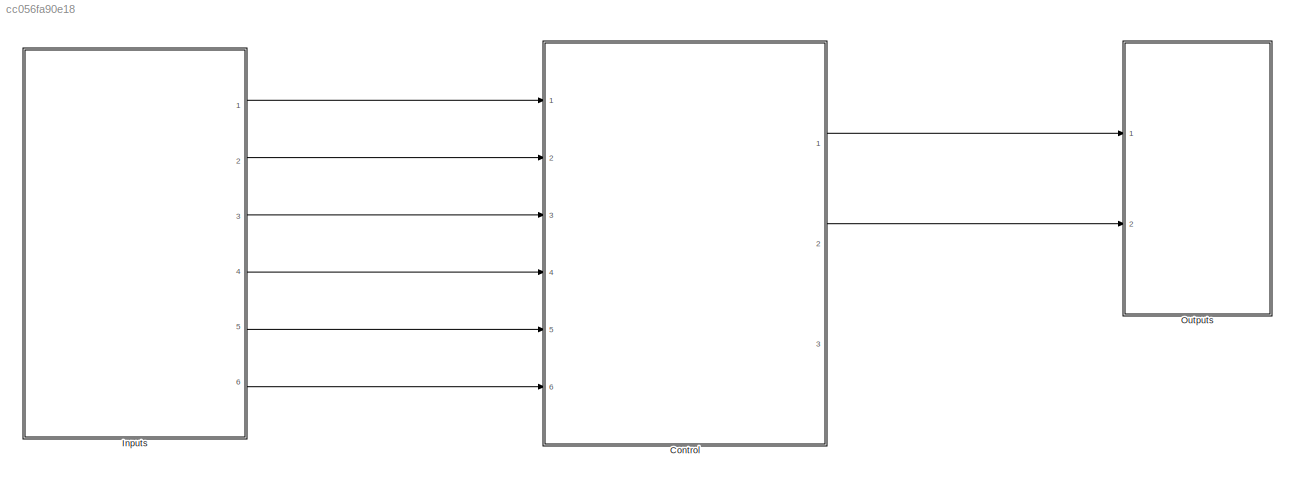
MODEL slx_cc056fa90e18
KIND model
CONFIG AbsTol = auto
CONFIG EnableMultiTasking = off
CONFIG FixedStep = auto
CONFIG MaxStep = auto
CONFIG MinStep = auto
CONFIG RelTol = 1e-3
CONFIG SampleTimeConstraint = Unconstrained
CONFIG Solver = VariableStepAuto
CONFIG SolverName = VariableStepAuto
CONFIG StartTime = 0.0
CONFIG StopTime = 20
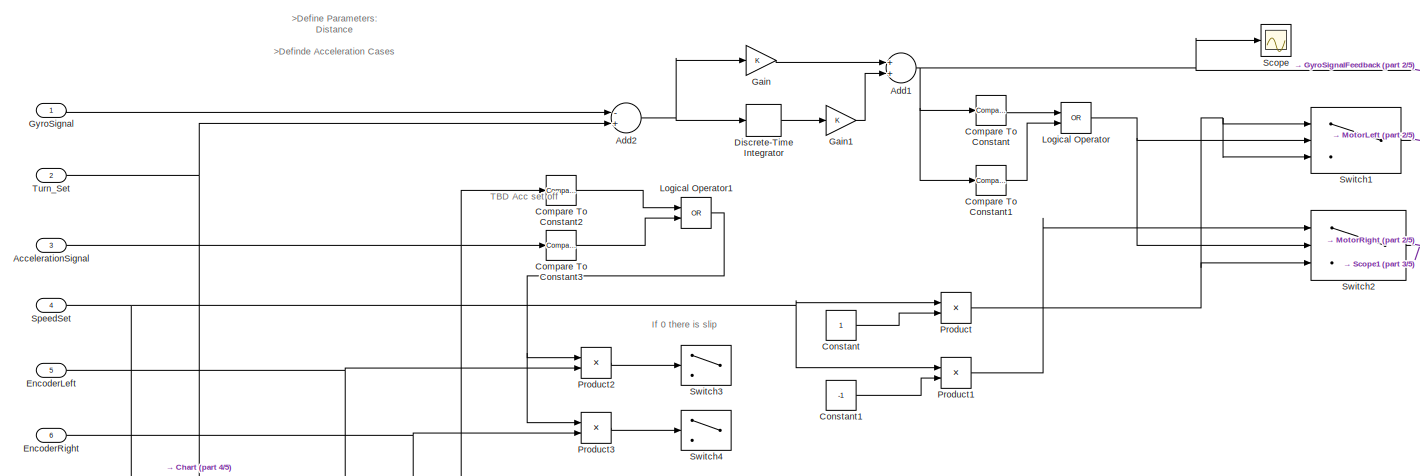
[diagram: Control - part 1/5, full width, top band]
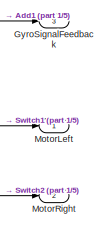
[diagram: Control - part 2/5, top right region]
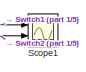
[diagram: Control - part 3/5, middle right region]
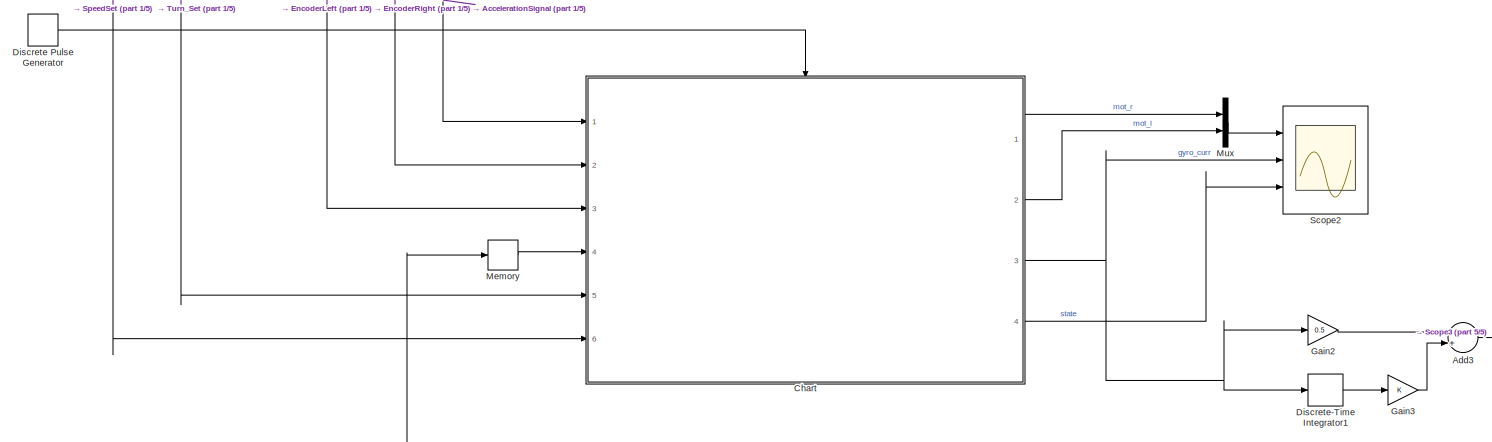
[diagram: Control - part 4/5, full width, bottom band]
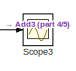
[diagram: Control - part 5/5, bottom right region]
BLOCK [SubSystem] Control
  Ports = [6, 3]
  RequestExecContextInheritance = off
BLOCK [Inport] Control/AccelerationSignal
  IconDisplay = Port number
  Port = 3
BLOCK [Sum] Control/Add1
  InputSameDT = off
  OutDataTypeStr = Inherit: Inherit via internal rule
  Ports = [2, 1]
  SaturateOnIntegerOverflow = off
BLOCK [Sum] Control/Add2
  InputSameDT = off
  Inputs = -+
  OutDataTypeStr = Inherit: Inherit via internal rule
  Ports = [2, 1]
  SaturateOnIntegerOverflow = off
BLOCK [Sum] Control/Add3
  InputSameDT = off
  OutDataTypeStr = Inherit: Inherit via internal rule
  Ports = [2, 1]
  SaturateOnIntegerOverflow = off
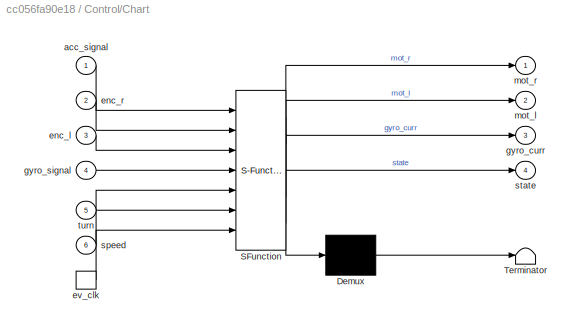
BLOCK [SubSystem] Control/Chart
  ErrorFcn = Stateflow.Translate.translate
  PermitHierarchicalResolution = ExplicitOnly
  Ports = [6, 4, 0, 1]
  RequestExecContextInheritance = off
  SFBlockType = Chart
  TreatAsAtomicUnit = on
BLOCK [Demux] Control/Chart/ Demux 
  Outputs = 1
  Ports = [1, 1]
BLOCK [S-Function] Control/Chart/ SFunction 
  EnableBusSupport = on
  FunctionName = sf_sfun
  PortCounts = [7 5]
  Ports = [7, 5]
  SFcnIsStateOwnerBlock = off
  SFunctionDeploymentMode = off
  Tag = Stateflow S-Function Acc_and_Gyro_Handling 3
BLOCK [Terminator] Control/Chart/ Terminator 
BLOCK [Inport] Control/Chart/acc_signal
  IconDisplay = Port number
BLOCK [Inport] Control/Chart/enc_l
  IconDisplay = Port number
  Port = 3
BLOCK [Inport] Control/Chart/enc_r
  IconDisplay = Port number
  Port = 2
BLOCK [TriggerPort] Control/Chart/ev_clk
  Ports = [0, 1]
  ShowOutputPort = on
  StatesWhenEnabling = held
  VariantControl = (inherit)
BLOCK [Outport] Control/Chart/gyro_curr
  IconDisplay = Port number
  Port = 3
BLOCK [Inport] Control/Chart/gyro_signal
  IconDisplay = Port number
  Port = 4
BLOCK [Outport] Control/Chart/mot_l
  IconDisplay = Port number
  Port = 2
BLOCK [Outport] Control/Chart/mot_r
  IconDisplay = Port number
BLOCK [Inport] Control/Chart/speed
  IconDisplay = Port number
  Port = 6
BLOCK [Outport] Control/Chart/state
  IconDisplay = Port number
  Port = 4
BLOCK [Inport] Control/Chart/turn
  IconDisplay = Port number
  Port = 5
BLOCK [Reference] Control/Compare To Constant  REF=simulink/Logic and Bit
Operations/Compare
To Constant
  Ports = [1, 1]
  SourceBlock = simulink/Logic and Bit\nOperations/Compare\nTo Constant
  SourceProductBaseCode = SL
  SourceProductName = Simulink
  SourceType = Compare To Constant
BLOCK [Reference] Control/Compare To Constant1  REF=simulink/Logic and Bit
Operations/Compare
To Constant
  Ports = [1, 1]
  SourceBlock = simulink/Logic and Bit\nOperations/Compare\nTo Constant
  SourceProductBaseCode = SL
  SourceProductName = Simulink
  SourceType = Compare To Constant
BLOCK [Reference] Control/Compare To Constant2  REF=simulink/Logic and Bit
Operations/Compare
To Constant
  Ports = [1, 1]
  SourceBlock = simulink/Logic and Bit\nOperations/Compare\nTo Constant
  SourceProductBaseCode = SL
  SourceProductName = Simulink
  SourceType = Compare To Constant
BLOCK [Reference] Control/Compare To Constant3  REF=simulink/Logic and Bit
Operations/Compare
To Constant
  Ports = [1, 1]
  SourceBlock = simulink/Logic and Bit\nOperations/Compare\nTo Constant
  SourceProductBaseCode = SL
  SourceProductName = Simulink
  SourceType = Compare To Constant
BLOCK [Constant] Control/Constant
BLOCK [Constant] Control/Constant1
  Value = -1
BLOCK [DiscretePulseGenerator] Control/Discrete Pulse Generator
  Ports = [0, 1]
  SampleTime = 0.1
BLOCK [DiscreteIntegrator] Control/Discrete-Time Integrator
  ICPrevOutput = DiscIntNeverNeededParam
  ICPrevScaledInput = DiscIntNeverNeededParam
  InitialConditionSetting = Auto
  Ports = [1, 1]
  SampleTime = -1
BLOCK [DiscreteIntegrator] Control/Discrete-Time Integrator1
  ICPrevOutput = DiscIntNeverNeededParam
  ICPrevScaledInput = DiscIntNeverNeededParam
  InitialConditionSetting = Auto
  Ports = [1, 1]
  SampleTime = 0.5
  gainval = 0.1
BLOCK [Inport] Control/EncoderLeft
  IconDisplay = Port number
  Port = 5
BLOCK [Inport] Control/EncoderRight
  IconDisplay = Port number
  Port = 6
BLOCK [Gain] Control/Gain
  OutDataTypeStr = Inherit: Inherit via internal rule
  ParamDataTypeStr = Inherit: Inherit via internal rule
  SaturateOnIntegerOverflow = off
BLOCK [Gain] Control/Gain1
  OutDataTypeStr = Inherit: Inherit via internal rule
  ParamDataTypeStr = Inherit: Inherit via internal rule
  SaturateOnIntegerOverflow = off
BLOCK [Gain] Control/Gain2
  Gain = 0.5
  OutDataTypeStr = Inherit: Inherit via internal rule
  ParamDataTypeStr = Inherit: Inherit via internal rule
  SaturateOnIntegerOverflow = off
BLOCK [Gain] Control/Gain3
  OutDataTypeStr = Inherit: Inherit via internal rule
  ParamDataTypeStr = Inherit: Inherit via internal rule
  SaturateOnIntegerOverflow = off
BLOCK [Inport] Control/GyroSignal
  IconDisplay = Port number
BLOCK [Outport] Control/GyroSignalFeedback
  IconDisplay = Port number
  Port = 3
BLOCK [Logic] Control/Logical Operator
  AllPortsSameDT = off
  Operator = OR
  OutDataTypeStr = boolean
  Ports = [2, 1]
BLOCK [Logic] Control/Logical Operator1
  AllPortsSameDT = off
  Operator = OR
  OutDataTypeStr = boolean
  Ports = [2, 1]
BLOCK [Memory] Control/Memory
  InheritSampleTime = on
BLOCK [Outport] Control/MotorLeft
  IconDisplay = Port number
BLOCK [Outport] Control/MotorRight
  IconDisplay = Port number
  Port = 2
BLOCK [Mux] Control/Mux
  DisplayOption = bar
  Inputs = 2
  Ports = [2, 1]
BLOCK [Product] Control/Product
  InputSameDT = off
  OutDataTypeStr = Inherit: Inherit via internal rule
  Ports = [2, 1]
  RndMeth = Floor
  SaturateOnIntegerOverflow = off
BLOCK [Product] Control/Product1
  InputSameDT = off
  OutDataTypeStr = Inherit: Inherit via internal rule
  Ports = [2, 1]
  RndMeth = Floor
  SaturateOnIntegerOverflow = off
BLOCK [Product] Control/Product2
  InputSameDT = off
  OutDataTypeStr = Inherit: Inherit via internal rule
  Ports = [2, 1]
  RndMeth = Floor
  SaturateOnIntegerOverflow = off
BLOCK [Product] Control/Product3
  InputSameDT = off
  OutDataTypeStr = Inherit: Inherit via internal rule
  Ports = [2, 1]
  RndMeth = Floor
  SaturateOnIntegerOverflow = off
BLOCK [Scope] Control/Scope
  Floating = off
  NumInputPorts = 1
  Ports = [1]
  ScopeSpecificationString = Simulink.scopes.TimeScopeBlockCfg('CurrentConfiguration', extmgr.ConfigurationSet(extmgr.Configuration('Core','General UI',true),extmgr.Configuration('Core','Source UI',true),extmgr.Configuration('Sources','WiredSimulink',true,'DataLoggingVariableName','ScopeData1'),extmgr.Configuration('Visuals','Time Domain',true,'SerializedDisplays',{struct('MinYLimReal','-2.44358','MaxYLimReal','0.45437','YLab...<+1382ch>
BLOCK [Scope] Control/Scope1
  Floating = off
  NumInputPorts = 2
  Ports = [2]
  ScopeSpecificationString = Simulink.scopes.TimeScopeBlockCfg('CurrentConfiguration', extmgr.ConfigurationSet(extmgr.Configuration('Core','General UI',true),extmgr.Configuration('Core','Source UI',true),extmgr.Configuration('Sources','WiredSimulink',true,'DataLoggingVariableName','ScopeData2'),extmgr.Configuration('Visuals','Time Domain',true,'SerializedDisplays',{struct('MinYLimReal','-1.25','MaxYLimReal','1.25','YLabelReal...<+1386ch>
BLOCK [Scope] Control/Scope2
  Floating = off
  NumInputPorts = 3
  Ports = [3]
  ScopeSpecificationString = Simulink.scopes.TimeScopeBlockCfg('CurrentConfiguration', extmgr.ConfigurationSet(extmgr.Configuration('Core','General UI',true),extmgr.Configuration('Core','Source UI',true),extmgr.Configuration('Sources','WiredSimulink',true,'DataLoggingVariableName','ScopeData1'),extmgr.Configuration('Visuals','Time Domain',true,'SerializedDisplays',{struct('MinYLimReal','-5.00000','MaxYLimReal','5.00000','YLab...<+2686ch>
BLOCK [Scope] Control/Scope3
  Floating = off
  NumInputPorts = 1
  Ports = [1]
  ScopeSpecificationString = Simulink.scopes.TimeScopeBlockCfg('CurrentConfiguration', extmgr.ConfigurationSet(extmgr.Configuration('Core','General UI',true),extmgr.Configuration('Core','Source UI',true),extmgr.Configuration('Sources','WiredSimulink',true,'DataLoggingVariableName','ScopeData1'),extmgr.Configuration('Visuals','Time Domain',true,'SerializedDisplays',{struct('MinYLimReal','-12.09375','MaxYLimReal','108.84375','Y...<+1446ch>
BLOCK [Inport] Control/SpeedSet
  IconDisplay = Port number
  Port = 4
BLOCK [Switch] Control/Switch1
  Criteria = u2 ~= 0
  InputSameDT = off
  SaturateOnIntegerOverflow = off
  Threshold = GyroSet
BLOCK [Switch] Control/Switch2
  Criteria = u2 ~= 0
  InputSameDT = off
  SaturateOnIntegerOverflow = off
  Threshold = GyroSet
BLOCK [Switch] Control/Switch3
  Criteria = u2 > Threshold
  InputSameDT = off
  SaturateOnIntegerOverflow = off
BLOCK [Switch] Control/Switch4
  Criteria = u2 > Threshold
  InputSameDT = off
  SaturateOnIntegerOverflow = off
BLOCK [Inport] Control/Turn_Set
  IconDisplay = Port number
  Port = 2
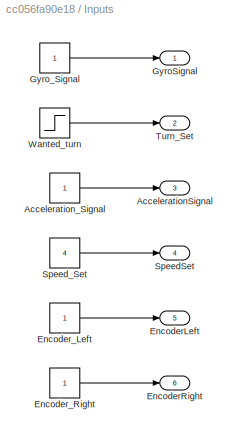
BLOCK [SubSystem] Inputs
  Ports = [0, 6]
  RequestExecContextInheritance = off
BLOCK [Outport] Inputs/AccelerationSignal
  IconDisplay = Port number
  Port = 3
BLOCK [Constant] Inputs/Acceleration_Signal
BLOCK [Outport] Inputs/EncoderLeft
  IconDisplay = Port number
  Port = 5
BLOCK [Outport] Inputs/EncoderRight
  IconDisplay = Port number
  Port = 6
BLOCK [Constant] Inputs/Encoder_Left
BLOCK [Constant] Inputs/Encoder_Right
BLOCK [Outport] Inputs/GyroSignal
  IconDisplay = Port number
BLOCK [Constant] Inputs/Gyro_Signal
BLOCK [Outport] Inputs/SpeedSet
  IconDisplay = Port number
  Port = 4
BLOCK [Constant] Inputs/Speed_Set
  Value = 4
BLOCK [Outport] Inputs/Turn_Set
  IconDisplay = Port number
  Port = 2
BLOCK [Step] Inputs/Wanted_turn
  After = 45
  SampleTime = 0
  Time = 3
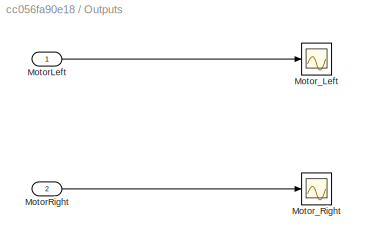
BLOCK [SubSystem] Outputs 
  Ports = [2]
  RequestExecContextInheritance = off
BLOCK [Inport] Outputs /MotorLeft
  IconDisplay = Port number
BLOCK [Inport] Outputs /MotorRight
  IconDisplay = Port number
  Port = 2
BLOCK [Scope] Outputs /Motor_Left
  Floating = off
  NumInputPorts = 1
  Ports = [1]
  ScopeSpecificationString = Simulink.scopes.TimeScopeBlockCfg('CurrentConfiguration', extmgr.ConfigurationSet(extmgr.Configuration('Core','General UI',true),extmgr.Configuration('Core','Source UI',true),extmgr.Configuration('Sources','WiredSimulink',true),extmgr.Configuration('Visuals','Time Domain',true,'SerializedDisplays',{struct('MinYLimReal','0.9','MaxYLimReal','1.1','YLabelReal','','MinYLimMag','0.9','MaxYLimMag','1.1'...<+1295ch>
BLOCK [Scope] Outputs /Motor_Right
  Floating = off
  NumInputPorts = 1
  Ports = [1]
  ScopeSpecificationString = Simulink.scopes.TimeScopeBlockCfg('CurrentConfiguration', extmgr.ConfigurationSet(extmgr.Configuration('Core','General UI',true),extmgr.Configuration('Core','Source UI',true),extmgr.Configuration('Sources','WiredSimulink',true,'DataLoggingVariableName','ScopeData1'),extmgr.Configuration('Visuals','Time Domain',true,'SerializedDisplays',{struct('MinYLimReal','-1.25','MaxYLimReal','1.25','YLabelReal...<+1351ch>
ANNOTATION Control: TBD Acc set off
ANNOTATION Control: >Define Parameters: Distance >Definde Acceleration Cases
ANNOTATION Control: If 0 there is slip
NET Control/AccelerationSignal:1 -> Control/Chart:1, Control/Compare To Constant2:1, Control/Compare To Constant3:1
NET Control/Add1:1 -> Control/Compare To Constant1:1, Control/Compare To Constant:1, Control/GyroSignalFeedback:1, Control/Scope:1
NET Control/Add2:1 -> Control/Discrete-Time Integrator:1, Control/Gain:1
NET Control/Add3:1 -> Control/Memory:1, Control/Scope3:1
LINE Control/Chart:1 -> Control/Mux:1
LINE Control/Chart:2 -> Control/Mux:2
NET Control/Chart:3 -> Control/Discrete-Time Integrator1:1, Control/Gain2:1, Control/Scope2:2
LINE Control/Chart:4 -> Control/Scope2:3
LINE Control/Compare To Constant1:1 -> Control/Logical Operator:2
LINE Control/Compare To Constant2:1 -> Control/Logical Operator1:1
LINE Control/Compare To Constant3:1 -> Control/Logical Operator1:2
LINE Control/Compare To Constant:1 -> Control/Logical Operator:1
LINE Control/Constant1:1 -> Control/Product1:2
LINE Control/Constant:1 -> Control/Product:2
LINE Control/Discrete Pulse Generator:1 -> Control/Chart:trigger
LINE Control/Discrete-Time Integrator1:1 -> Control/Gain3:1
LINE Control/Discrete-Time Integrator:1 -> Control/Gain1:1
NET Control/EncoderLeft:1 -> Control/Chart:3, Control/Product2:2
NET Control/EncoderRight:1 -> Control/Chart:2, Control/Product3:2
LINE Control/Gain1:1 -> Control/Add1:2
LINE Control/Gain2:1 -> Control/Add3:1
LINE Control/Gain3:1 -> Control/Add3:2
LINE Control/Gain:1 -> Control/Add1:1
LINE Control/GyroSignal:1 -> Control/Add2:1
NET Control/Logical Operator1:1 -> Control/Product2:1, Control/Product3:1
NET Control/Logical Operator:1 -> Control/Switch1:2, Control/Switch2:2
LINE Control/Memory:1 -> Control/Chart:4
LINE Control/Mux:1 -> Control/Scope2:1
LINE Control/Product1:1 -> Control/Switch2:1
LINE Control/Product2:1 -> Control/Switch3:2
LINE Control/Product3:1 -> Control/Switch4:2
NET Control/Product:1 -> Control/Switch1:1, Control/Switch1:3, Control/Switch2:3
NET Control/SpeedSet:1 -> Control/Chart:6, Control/Product1:1, Control/Product:1
NET Control/Switch1:1 -> Control/MotorLeft:1, Control/Scope1:1
NET Control/Switch2:1 -> Control/MotorRight:1, Control/Scope1:2
NET Control/Turn_Set:1 -> Control/Add2:2, Control/Chart:5
LINE Control:1 -> Outputs :1
LINE Control:2 -> Outputs :2
LINE Inputs/Acceleration_Signal:1 -> Inputs/AccelerationSignal:1
LINE Inputs/Encoder_Left:1 -> Inputs/EncoderLeft:1
LINE Inputs/Encoder_Right:1 -> Inputs/EncoderRight:1
LINE Inputs/Gyro_Signal:1 -> Inputs/GyroSignal:1
LINE Inputs/Speed_Set:1 -> Inputs/SpeedSet:1
LINE Inputs/Wanted_turn:1 -> Inputs/Turn_Set:1
LINE Inputs:1 -> Control:1
LINE Inputs:2 -> Control:2
LINE Inputs:3 -> Control:3
LINE Inputs:4 -> Control:4
LINE Inputs:5 -> Control:5
LINE Inputs:6 -> Control:6
LINE Outputs /MotorLeft:1 -> Outputs /Motor_Left:1
LINE Outputs /MotorRight:1 -> Outputs /Motor_Right:1
note: NET lines group one-source signal fan-out (src -> all destinations, sorted); 1:1 wires keep LINE
CHART Control/Chart states=5 transitions=9
  STATE_LABEL 'Turn_Left\nentry: mot_l=-speed; mot_r=speed;\n gyro_curr=turn; state=5;\nduring: mot_l=-speed; mot_r=speed;\n gyro_curr=turn;\nexit: mot_l=0; mot_r=0;'
  STATE_LABEL 'Turn_Right\nentry: mot_l=speed; mot_r=-speed;\n gyro_curr=turn; state=4;\nduring: mot_l=speed; mot_r=-speed;\n gyro_curr=turn;\nexit: mot_l=0; mot_r=0;'
  STATE_LABEL 'Idle\nentry:mot_l=0; mot_r=0; state=1;\nduring:mot_l=0; mot_r=0;\n'
  STATE_LABEL 'Backward\nentry: mot_l=speed; mot_r=speed; state=2\nduring: mot_l=speed; mot_r=speed;\nexit: mot_l=0; mot_r=0;'
  STATE_LABEL 'Forward\nentry: mot_l=speed; mot_r=speed; state=3;\nduring: mot_l=speed; mot_r=speed;\nexit: mot_l=0; mot_r=0;'
